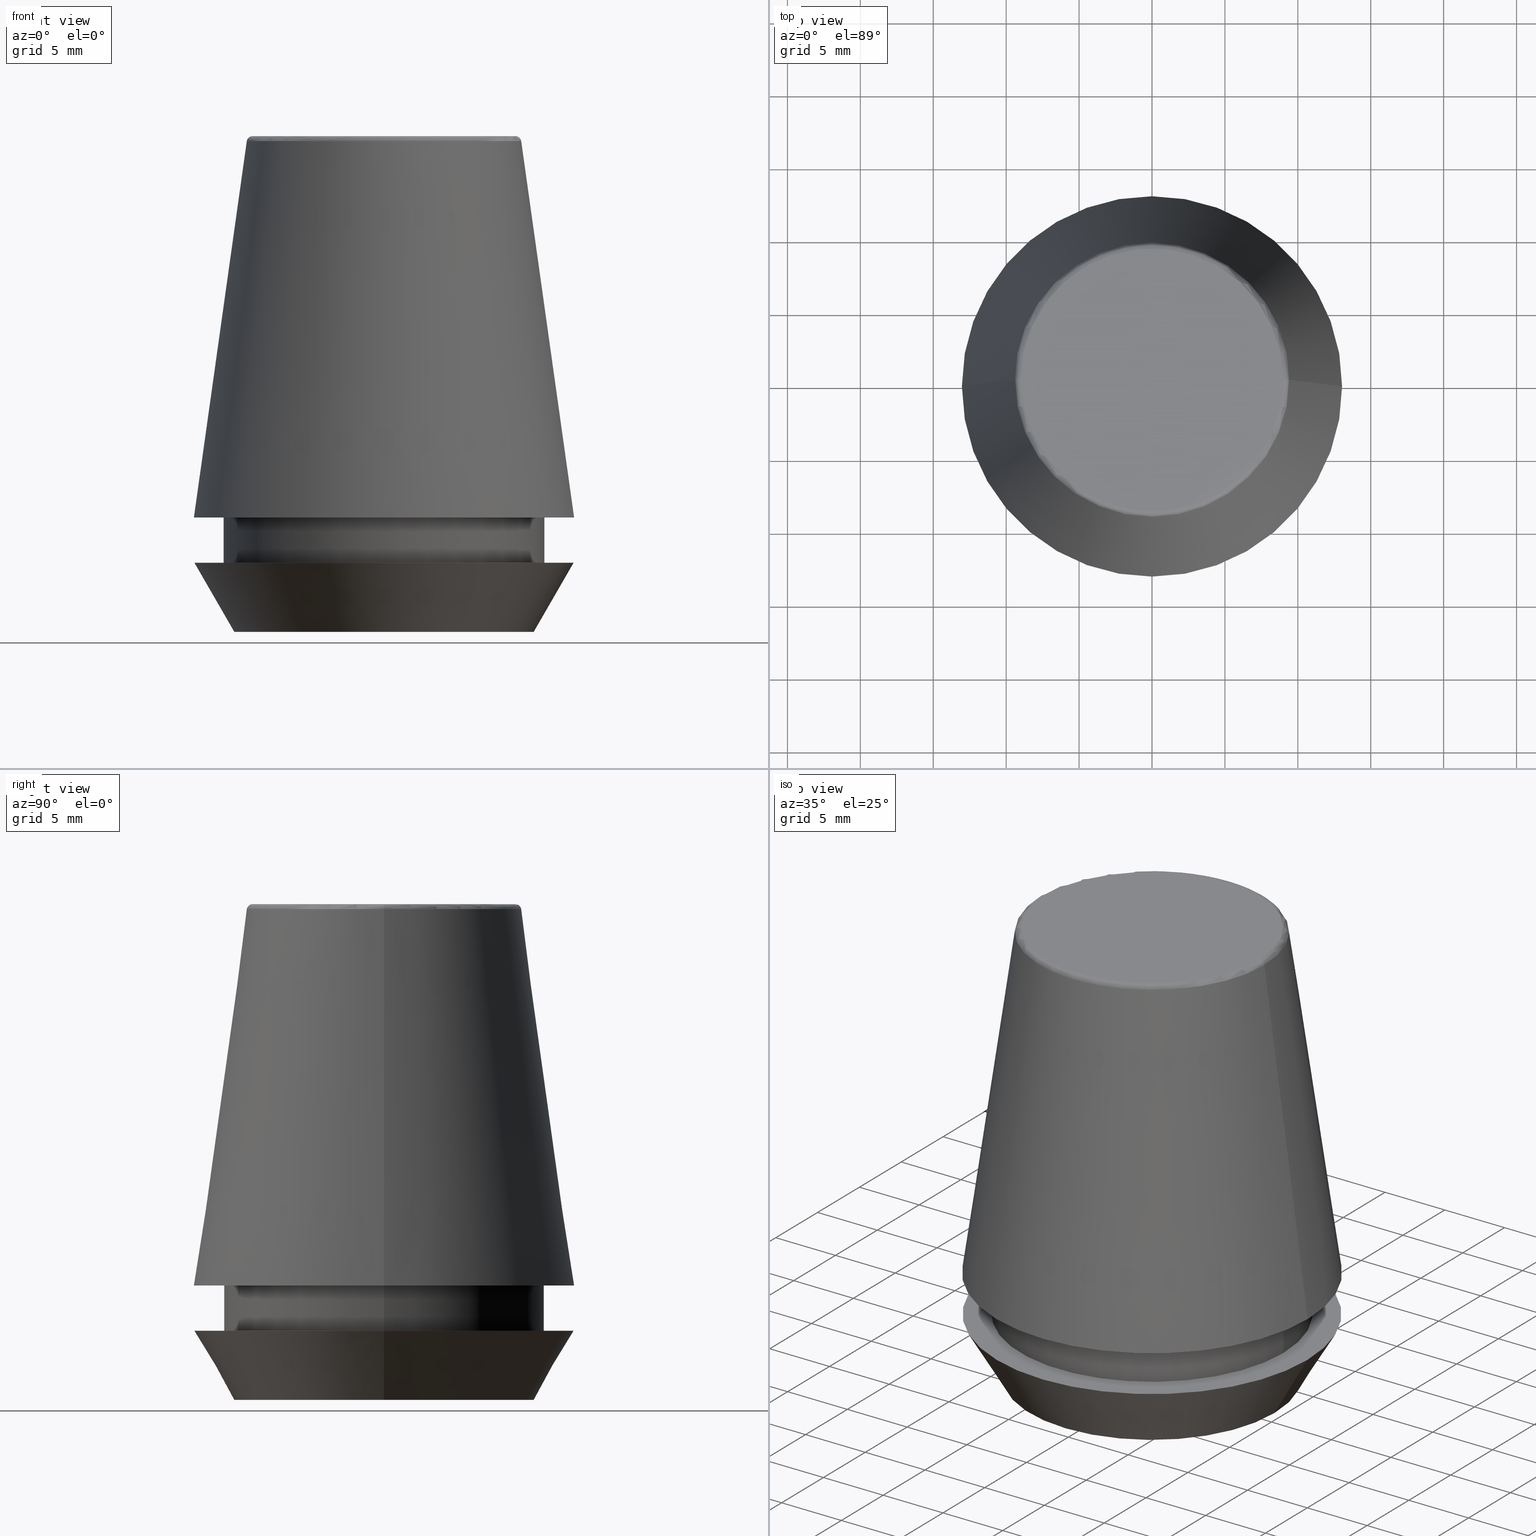
[diagram: canonical four-view strip — front | top / right | iso, engineering-drawing reading convention]
A machine part, canonical four-view strip (front | top / right | iso — engineering-drawing reading convention). The complete STEP part file that produces these views, byte-faithful:
ISO-10303-21;
HEADER;
FILE_DESCRIPTION (( 'STEP AP203' ),
    '1' );
FILE_NAME ('TAP COLLET ER 25G  8.0  X 6.3.STEP',
    '2019-04-09T10:04:27',
    ( '' ),
    ( '' ),
    'SwSTEP 2.0',
    'SolidWorks 2014',
    '' );
FILE_SCHEMA (( 'CONFIG_CONTROL_DESIGN' ));
ENDSEC;

DATA;
#1 = ADVANCED_BREP_SHAPE_REPRESENTATION ( 'TAP COLLET ER 25G  8.0  X 6.3', ( #89, #218 ), #176 ) ;
#2 = DIRECTION ( 'NONE',  ( 0.0000000000000000000, 0.0000000000000000000, -1.000000000000000000 ) ) ;
#3 = EDGE_CURVE ( 'NONE', #266, #68, #199, .T. ) ;
#4 = CARTESIAN_POINT ( 'NONE',  ( 10.26217568973925200, 0.0000000000000000000, 0.0000000000000000000 ) ) ;
#5 = DATE_AND_TIME ( #16, #63 ) ;
#6 = ORIENTED_EDGE ( 'NONE', *, *, #113, .F. ) ;
#7 = DIRECTION ( 'NONE',  ( 0.1391731009600587800, 1.704378926181474000E-017, -0.9902680687415712500 ) ) ;
#8 = CARTESIAN_POINT ( 'NONE',  ( 0.0000000000000000000, 0.0000000000000000000, 0.0000000000000000000 ) ) ;
#9 = ORIENTED_EDGE ( 'NONE', *, *, #150, .F. ) ;
#10 = CALENDAR_DATE ( 2019, 9, 4 ) ;
#11 = ORIENTED_EDGE ( 'NONE', *, *, #90, .F. ) ;
#12 = DIRECTION ( 'NONE',  ( 0.0000000000000000000, 0.0000000000000000000, -1.000000000000000000 ) ) ;
#13 = PRODUCT ( 'TAP COLLET ER 25G  8.0  X 6.3', 'TAP COLLET ER 25G  8.0  X 6.3', '', ( #167 ) ) ;
#14 = CONICAL_SURFACE ( 'NONE', #325, 13.03657776635556700, 0.1396263401595396500 ) ;
#15 = APPROVAL_ROLE ( '' ) ;
#16 = CALENDAR_DATE ( 2019, 9, 4 ) ;
#17 = FACE_OUTER_BOUND ( 'NONE', #290, .T. ) ;
#18 = CARTESIAN_POINT ( 'NONE',  ( 0.0000000000000000000, 0.0000000000000000000, 101.8074564848000400 ) ) ;
#19 = DIRECTION ( 'NONE',  ( -0.0000000000000000000, -0.0000000000000000000, 1.000000000000000000 ) ) ;
#20 = DIRECTION ( 'NONE',  ( 1.000000000000000000, 0.0000000000000000000, 0.0000000000000000000 ) ) ;
#21 = COORDINATED_UNIVERSAL_TIME_OFFSET ( 5, 30, .AHEAD. ) ;
#22 = ORIENTED_EDGE ( 'NONE', *, *, #87, .T. ) ;
#23 = PERSON_AND_ORGANIZATION ( #249, #98 ) ;
#24 = PLANE ( 'NONE',  #122 ) ;
#25 = FACE_OUTER_BOUND ( 'NONE', #142, .T. ) ;
#26 = PERSON_AND_ORGANIZATION ( #249, #98 ) ;
#27 = ORIENTED_EDGE ( 'NONE', *, *, #113, .T. ) ;
#28 = CARTESIAN_POINT ( 'NONE',  ( -13.03657776635556700, 0.0000000000000000000, 7.842050807568876200 ) ) ;
#29 = DESIGN_CONTEXT ( 'detailed design', #335, 'design' ) ;
#30 = DIRECTION ( 'NONE',  ( -1.000000000000000000, 0.0000000000000000000, -0.0000000000000000000 ) ) ;
#31 = DATE_AND_TIME ( #10, #91 ) ;
#32 = AXIS2_PLACEMENT_3D ( 'NONE', #297, #145, #331 ) ;
#33 = ORIENTED_EDGE ( 'NONE', *, *, #51, .F. ) ;
#34 = CARTESIAN_POINT ( 'NONE',  ( 0.0000000000000000000, 0.0000000000000000000, 33.60000000000000100 ) ) ;
#35 = FACE_OUTER_BOUND ( 'NONE', #304, .T. ) ;
#36 = ADVANCED_FACE ( 'NONE', ( #154 ), #330, .T. ) ;
#37 = DIRECTION ( 'NONE',  ( 1.000000000000000000, 0.0000000000000000000, 0.0000000000000000000 ) ) ;
#38 = DIRECTION ( 'NONE',  ( 1.000000000000000000, 0.0000000000000000000, 0.0000000000000000000 ) ) ;
#39 = PRODUCT_DEFINITION ( 'UNKNOWN', '', #186, #29 ) ;
#40 = ORIENTED_EDGE ( 'NONE', *, *, #230, .T. ) ;
#41 = DIRECTION ( 'NONE',  ( -0.0000000000000000000, -0.0000000000000000000, 1.000000000000000000 ) ) ;
#42 = CIRCLE ( 'NONE', #340, 13.03657776635556700 ) ;
#43 = EDGE_CURVE ( 'NONE', #243, #68, #299, .T. ) ;
#44 = DIRECTION ( 'NONE',  ( 1.000000000000000000, 0.0000000000000000000, 0.0000000000000000000 ) ) ;
#45 = DIRECTION ( 'NONE',  ( -0.1391731009600587800, 0.0000000000000000000, -0.9902680687415712500 ) ) ;
#46 = ADVANCED_FACE ( 'NONE', ( #125 ), #14, .T. ) ;
#47 =( NAMED_UNIT ( * ) SI_UNIT ( $, .STERADIAN. ) SOLID_ANGLE_UNIT ( ) );
#48 = FACE_OUTER_BOUND ( 'NONE', #337, .T. ) ;
#49 = EDGE_CURVE ( 'NONE', #144, #198, #42, .T. ) ;
#50 = CARTESIAN_POINT ( 'NONE',  ( 0.0000000000000000000, 0.0000000000000000000, 7.842050807568876200 ) ) ;
#51 = EDGE_CURVE ( 'NONE', #136, #69, #196, .T. ) ;
#52 = PERSON_AND_ORGANIZATION_ROLE ( 'creator' ) ;
#53 = EDGE_CURVE ( 'NONE', #81, #198, #58, .T. ) ;
#54 = CARTESIAN_POINT ( 'NONE',  ( 9.012603057622234500, 0.0000000000000000000, 33.60000000000000100 ) ) ;
#55 = ORIENTED_EDGE ( 'NONE', *, *, #180, .F. ) ;
#56 = DIRECTION ( 'NONE',  ( 1.000000000000000000, 0.0000000000000000000, 0.0000000000000000000 ) ) ;
#57 = ORIENTED_EDGE ( 'NONE', *, *, #64, .F. ) ;
#58 = LINE ( 'NONE', #387, #181 ) ;
#59 = APPROVAL_PERSON_ORGANIZATION ( #112, #315, #306 ) ;
#60 = DIRECTION ( 'NONE',  ( -0.0000000000000000000, -0.0000000000000000000, 1.000000000000000000 ) ) ;
#61 = DIRECTION ( 'NONE',  ( 0.0000000000000000000, -1.000000000000000000, 0.0000000000000000000 ) ) ;
#62 = CIRCLE ( 'NONE', #265, 13.03657776635556700 ) ;
#63 = LOCAL_TIME ( 15, 34, 27.00000000000000000, #21 ) ;
#64 = EDGE_CURVE ( 'NONE', #69, #136, #370, .T. ) ;
#65 = PRODUCT_DEFINITION_SHAPE ( 'NONE', 'NONE',  #39 ) ;
#66 = VERTEX_POINT ( 'NONE', #247 ) ;
#67 = CC_DESIGN_APPROVAL ( #250, ( #186 ) ) ;
#68 = VERTEX_POINT ( 'NONE', #282 ) ;
#69 = VERTEX_POINT ( 'NONE', #162 ) ;
#70 = APPROVAL_DATE_TIME ( #350, #351 ) ;
#71 = AXIS2_PLACEMENT_3D ( 'NONE', #160, #131, #255 ) ;
#72 = EDGE_CURVE ( 'NONE', #269, #66, #200, .T. ) ;
#73 = ORIENTED_EDGE ( 'NONE', *, *, #53, .F. ) ;
#74 = CIRCLE ( 'NONE', #373, 9.408710285118862900 ) ;
#75 = APPROVAL_PERSON_ORGANIZATION ( #317, #250, #248 ) ;
#76 = DIRECTION ( 'NONE',  ( -0.0000000000000000000, -0.0000000000000000000, 1.000000000000000000 ) ) ;
#77 = EDGE_LOOP ( 'NONE', ( #151, #187, #326, #6 ) ) ;
#78 = DIRECTION ( 'NONE',  ( 0.0000000000000000000, 0.0000000000000000000, -1.000000000000000000 ) ) ;
#79 = CIRCLE ( 'NONE', #334, 0.4000000000000010200 ) ;
#80 = CALENDAR_DATE ( 2019, 9, 4 ) ;
#81 = VERTEX_POINT ( 'NONE', #172 ) ;
#82 = DIRECTION ( 'NONE',  ( 1.000000000000000000, 0.0000000000000000000, 0.0000000000000000000 ) ) ;
#83 = APPLICATION_CONTEXT ( 'configuration controlled 3d designs of mechanical parts and assemblies' ) ;
#84 = CARTESIAN_POINT ( 'NONE',  ( 0.0000000000000000000, 0.0000000000000000000, 0.0000000000000000000 ) ) ;
#85 = EDGE_CURVE ( 'NONE', #185, #136, #348, .T. ) ;
#86 = PERSON_AND_ORGANIZATION_ROLE ( 'creator' ) ;
#87 = EDGE_CURVE ( 'NONE', #68, #266, #110, .T. ) ;
#88 = ADVANCED_FACE ( 'NONE', ( #25 ), #257, .T. ) ;
#89 = MANIFOLD_SOLID_BREP ( 'Revolve1', #303 ) ;
#90 = EDGE_CURVE ( 'NONE', #124, #185, #270, .T. ) ;
#91 = LOCAL_TIME ( 15, 34, 27.00000000000000000, #212 ) ;
#92 = COORDINATED_UNIVERSAL_TIME_OFFSET ( 5, 30, .AHEAD. ) ;
#93 = ORIENTED_EDGE ( 'NONE', *, *, #129, .F. ) ;
#94 = ADVANCED_FACE ( 'NONE', ( #105 ), #117, .T. ) ;
#95 = EDGE_CURVE ( 'NONE', #185, #124, #165, .T. ) ;
#96 = AXIS2_PLACEMENT_3D ( 'NONE', #385, #192, #195 ) ;
#97 = COORDINATED_UNIVERSAL_TIME_OFFSET ( 5, 30, .AHEAD. ) ;
#98 = ORGANIZATION ( 'UNSPECIFIED', 'UNSPECIFIED', '' ) ;
#99 = DIRECTION ( 'NONE',  ( -0.0000000000000000000, -0.0000000000000000000, 1.000000000000000000 ) ) ;
#100 = EDGE_LOOP ( 'NONE', ( #215, #133, #203, #279 ) ) ;
#101 = AXIS2_PLACEMENT_3D ( 'NONE', #241, #280, #190 ) ;
#102 = CC_DESIGN_APPROVAL ( #315, ( #353 ) ) ;
#103 = ORIENTED_EDGE ( 'NONE', *, *, #230, .F. ) ;
#104 = FACE_BOUND ( 'NONE', #205, .T. ) ;
#105 = FACE_OUTER_BOUND ( 'NONE', #220, .T. ) ;
#106 = DIRECTION ( 'NONE',  ( 1.000000000000000000, 0.0000000000000000000, 0.0000000000000000000 ) ) ;
#107 = DATE_AND_TIME ( #127, #284 ) ;
#108 = PLANE ( 'NONE',  #137 ) ;
#109 = DIRECTION ( 'NONE',  ( 1.000000000000000000, 0.0000000000000000000, 0.0000000000000000000 ) ) ;
#110 = CIRCLE ( 'NONE', #246, 11.00000000000000000 ) ;
#111 = CARTESIAN_POINT ( 'NONE',  ( 0.0000000000000000000, 0.0000000000000000000, 33.65566924038402900 ) ) ;
#112 = PERSON_AND_ORGANIZATION ( #249, #98 ) ;
#113 = EDGE_CURVE ( 'NONE', #132, #66, #233, .T. ) ;
#114 = DIRECTION ( 'NONE',  ( 0.0000000000000000000, 0.0000000000000000000, -1.000000000000000000 ) ) ;
#115 = DIRECTION ( 'NONE',  ( -0.0000000000000000000, -0.0000000000000000000, 1.000000000000000000 ) ) ;
#116 = ORIENTED_EDGE ( 'NONE', *, *, #90, .T. ) ;
#117 = TOROIDAL_SURFACE ( 'NONE', #283, 9.012603057622234500, 0.4000000000000009700 ) ;
#118 = DIRECTION ( 'NONE',  ( -0.0000000000000000000, -0.0000000000000000000, 1.000000000000000000 ) ) ;
#119 = DIRECTION ( 'NONE',  ( 1.000000000000000000, 0.0000000000000000000, 0.0000000000000000000 ) ) ;
#120 = CONICAL_SURFACE ( 'NONE', #319, 13.03657776635556700, 0.1396263401595396500 ) ;
#121 = SECURITY_CLASSIFICATION_LEVEL ( 'unclassified' ) ;
#122 = AXIS2_PLACEMENT_3D ( 'NONE', #354, #12, #213 ) ;
#123 = CC_DESIGN_PERSON_AND_ORGANIZATION_ASSIGNMENT ( #371, #338, ( #353 ) ) ;
#124 = VERTEX_POINT ( 'NONE', #287 ) ;
#125 = FACE_OUTER_BOUND ( 'NONE', #175, .T. ) ;
#126 = DATE_TIME_ROLE ( 'creation_date' ) ;
#127 = CALENDAR_DATE ( 2019, 9, 4 ) ;
#128 = ORIENTED_EDGE ( 'NONE', *, *, #95, .F. ) ;
#129 = EDGE_CURVE ( 'NONE', #269, #144, #344, .T. ) ;
#130 = DIRECTION ( 'NONE',  ( 0.0000000000000000000, -0.0000000000000000000, 1.000000000000000000 ) ) ;
#131 = DIRECTION ( 'NONE',  ( -0.0000000000000000000, -0.0000000000000000000, 1.000000000000000000 ) ) ;
#132 = VERTEX_POINT ( 'NONE', #244 ) ;
#133 = ORIENTED_EDGE ( 'NONE', *, *, #146, .T. ) ;
#134 = DIRECTION ( 'NONE',  ( 1.000000000000000000, 0.0000000000000000000, 0.0000000000000000000 ) ) ;
#135 = DIRECTION ( 'NONE',  ( 1.224646799147353200E-016, 1.000000000000000000, 0.0000000000000000000 ) ) ;
#136 = VERTEX_POINT ( 'NONE', #264 ) ;
#137 = AXIS2_PLACEMENT_3D ( 'NONE', #262, #130, #378 ) ;
#138 = EDGE_LOOP ( 'NONE', ( #93, #369, #379, #355 ) ) ;
#139 = VECTOR ( 'NONE', #99, 1000.000000000000000 ) ;
#140 = CIRCLE ( 'NONE', #32, 11.00000000000000000 ) ;
#141 = DIRECTION ( 'NONE',  ( 1.000000000000000000, 0.0000000000000000000, 0.0000000000000000000 ) ) ;
#142 = EDGE_LOOP ( 'NONE', ( #275, #232, #189, #260 ) ) ;
#143 = DIRECTION ( 'NONE',  ( -0.0000000000000000000, -0.0000000000000000000, 1.000000000000000000 ) ) ;
#144 = VERTEX_POINT ( 'NONE', #240 ) ;
#145 = DIRECTION ( 'NONE',  ( -0.0000000000000000000, -0.0000000000000000000, 1.000000000000000000 ) ) ;
#146 = EDGE_CURVE ( 'NONE', #243, #169, #321, .T. ) ;
#147 = CARTESIAN_POINT ( 'NONE',  ( 0.0000000000000000000, 0.0000000000000000000, 0.0000000000000000000 ) ) ;
#148 = PERSON_AND_ORGANIZATION_ROLE ( 'design_owner' ) ;
#149 = DIRECTION ( 'NONE',  ( 0.0000000000000000000, 0.0000000000000000000, -1.000000000000000000 ) ) ;
#150 = EDGE_CURVE ( 'NONE', #269, #81, #74, .T. ) ;
#151 = ORIENTED_EDGE ( 'NONE', *, *, #236, .F. ) ;
#152 = APPROVAL_PERSON_ORGANIZATION ( #23, #351, #15 ) ;
#153 = ADVANCED_FACE ( 'NONE', ( #327 ), #197, .T. ) ;
#154 = FACE_OUTER_BOUND ( 'NONE', #296, .T. ) ;
#155 = CARTESIAN_POINT ( 'NONE',  ( 0.0000000000000000000, 0.0000000000000000000, 7.842050807568876200 ) ) ;
#156 = SHAPE_DEFINITION_REPRESENTATION ( #65, #1 ) ;
#157 = CARTESIAN_POINT ( 'NONE',  ( 0.0000000000000000000, 9.012603057622234500, 34.00000000000000000 ) ) ;
#158 = PLANE ( 'NONE',  #332 ) ;
#159 = EDGE_CURVE ( 'NONE', #169, #266, #328, .T. ) ;
#160 = CARTESIAN_POINT ( 'NONE',  ( 0.0000000000000000000, 0.0000000000000000000, 4.742050807568884500 ) ) ;
#161 = CONICAL_SURFACE ( 'NONE', #382, 10.26217568973925200, 0.5235987755982940400 ) ;
#162 = CARTESIAN_POINT ( 'NONE',  ( 13.00000000000000000, 0.0000000000000000000, 4.742050807568884500 ) ) ;
#163 = ORIENTED_EDGE ( 'NONE', *, *, #180, .T. ) ;
#164 = ADVANCED_FACE ( 'NONE', ( #173, #235 ), #171, .F. ) ;
#165 = CIRCLE ( 'NONE', #320, 10.26217568973925200 ) ;
#166 = LINE ( 'NONE', #4, #305 ) ;
#167 = MECHANICAL_CONTEXT ( 'NONE', #83, 'mechanical' ) ;
#168 = CARTESIAN_POINT ( 'NONE',  ( 0.0000000000000000000, 0.0000000000000000000, 4.742050807568884500 ) ) ;
#169 = VERTEX_POINT ( 'NONE', #184 ) ;
#170 = DIRECTION ( 'NONE',  ( 1.000000000000000000, 0.0000000000000000000, 0.0000000000000000000 ) ) ;
#171 = PLANE ( 'NONE',  #356 ) ;
#172 = CARTESIAN_POINT ( 'NONE',  ( -9.408710285118862900, 0.0000000000000000000, 33.65566924038402900 ) ) ;
#173 = FACE_OUTER_BOUND ( 'NONE', #352, .T. ) ;
#174 = CARTESIAN_POINT ( 'NONE',  ( 0.0000000000000000000, 0.0000000000000000000, 33.65566924038402900 ) ) ;
#175 = EDGE_LOOP ( 'NONE', ( #9, #365, #206, #73 ) ) ;
#176 =( GEOMETRIC_REPRESENTATION_CONTEXT ( 3 ) GLOBAL_UNCERTAINTY_ASSIGNED_CONTEXT ( ( #271 ) ) GLOBAL_UNIT_ASSIGNED_CONTEXT ( ( #254, #216, #47 ) ) REPRESENTATION_CONTEXT ( 'NONE', 'WORKASPACE' ) );
#177 = VECTOR ( 'NONE', #278, 1000.000000000000200 ) ;
#178 = CIRCLE ( 'NONE', #362, 9.012603057622234500 ) ;
#179 = COORDINATED_UNIVERSAL_TIME_OFFSET ( 5, 30, .AHEAD. ) ;
#180 = EDGE_CURVE ( 'NONE', #66, #132, #178, .T. ) ;
#181 = VECTOR ( 'NONE', #45, 1000.000000000000000 ) ;
#182 = FACE_OUTER_BOUND ( 'NONE', #138, .T. ) ;
#183 = PRODUCT_RELATED_PRODUCT_CATEGORY ( 'detail', '', ( #13 ) ) ;
#184 = CARTESIAN_POINT ( 'NONE',  ( 11.00000000000000000, 0.0000000000000000000, 4.742050807568884500 ) ) ;
#185 = VERTEX_POINT ( 'NONE', #263 ) ;
#186 = PRODUCT_DEFINITION_FORMATION_WITH_SPECIFIED_SOURCE ( 'ANY', '', #13, .NOT_KNOWN. ) ;
#187 = ORIENTED_EDGE ( 'NONE', *, *, #237, .T. ) ;
#188 = CC_DESIGN_DATE_AND_TIME_ASSIGNMENT ( #5, #274, ( #353 ) ) ;
#189 = ORIENTED_EDGE ( 'NONE', *, *, #3, .F. ) ;
#190 = DIRECTION ( 'NONE',  ( 1.000000000000000000, 0.0000000000000000000, 0.0000000000000000000 ) ) ;
#191 = VECTOR ( 'NONE', #7, 1000.000000000000000 ) ;
#192 = DIRECTION ( 'NONE',  ( -0.0000000000000000000, -0.0000000000000000000, 1.000000000000000000 ) ) ;
#193 = APPROVAL_STATUS ( 'not_yet_approved' ) ;
#194 = DIRECTION ( 'NONE',  ( -1.000000000000000000, 0.0000000000000000000, 0.0000000000000000000 ) ) ;
#195 = DIRECTION ( 'NONE',  ( 1.000000000000000000, 0.0000000000000000000, 0.0000000000000000000 ) ) ;
#196 = CIRCLE ( 'NONE', #329, 13.00000000000000000 ) ;
#197 = TOROIDAL_SURFACE ( 'NONE', #364, 9.012603057622234500, 0.4000000000000009700 ) ;
#198 = VERTEX_POINT ( 'NONE', #28 ) ;
#199 = CIRCLE ( 'NONE', #101, 11.00000000000000000 ) ;
#200 = CIRCLE ( 'NONE', #285, 0.3999999999999975800 ) ;
#201 = DIRECTION ( 'NONE',  ( 1.000000000000000000, 0.0000000000000000000, 0.0000000000000000000 ) ) ;
#202 = LOCAL_TIME ( 15, 34, 27.00000000000000000, #179 ) ;
#203 = ORIENTED_EDGE ( 'NONE', *, *, #159, .T. ) ;
#204 = CC_DESIGN_SECURITY_CLASSIFICATION ( #353, ( #186 ) ) ;
#205 = EDGE_LOOP ( 'NONE', ( #347, #358 ) ) ;
#206 = ORIENTED_EDGE ( 'NONE', *, *, #49, .T. ) ;
#207 = CC_DESIGN_PERSON_AND_ORGANIZATION_ASSIGNMENT ( #26, #52, ( #39 ) ) ;
#208 = CC_DESIGN_PERSON_AND_ORGANIZATION_ASSIGNMENT ( #333, #86, ( #186 ) ) ;
#209 = CARTESIAN_POINT ( 'NONE',  ( 0.0000000000000000000, 13.03657776635556700, 7.842050807568883300 ) ) ;
#210 = CARTESIAN_POINT ( 'NONE',  ( -10.26217568973925200, 1.256754061072695800E-015, 0.0000000000000000000 ) ) ;
#211 = ORIENTED_EDGE ( 'NONE', *, *, #95, .T. ) ;
#212 = COORDINATED_UNIVERSAL_TIME_OFFSET ( 5, 30, .AHEAD. ) ;
#213 = DIRECTION ( 'NONE',  ( -1.000000000000000000, 0.0000000000000000000, -0.0000000000000000000 ) ) ;
#214 = LOCAL_TIME ( 15, 34, 27.00000000000000000, #92 ) ;
#215 = ORIENTED_EDGE ( 'NONE', *, *, #43, .F. ) ;
#216 =( NAMED_UNIT ( * ) PLANE_ANGLE_UNIT ( ) SI_UNIT ( $, .RADIAN. ) );
#217 = PERSON_AND_ORGANIZATION_ROLE ( 'design_supplier' ) ;
#218 = AXIS2_PLACEMENT_3D ( 'NONE', #147, #372, #119 ) ;
#219 = DIRECTION ( 'NONE',  ( 1.000000000000000000, 0.0000000000000000000, 0.0000000000000000000 ) ) ;
#220 = EDGE_LOOP ( 'NONE', ( #286, #375, #55, #221 ) ) ;
#221 = ORIENTED_EDGE ( 'NONE', *, *, #72, .F. ) ;
#222 = CARTESIAN_POINT ( 'NONE',  ( 0.0000000000000000000, 0.0000000000000000000, 33.60000000000000100 ) ) ;
#223 = ADVANCED_FACE ( 'NONE', ( #17 ), #158, .F. ) ;
#224 = PERSON_AND_ORGANIZATION ( #249, #98 ) ;
#225 = CC_DESIGN_PERSON_AND_ORGANIZATION_ASSIGNMENT ( #323, #148, ( #13 ) ) ;
#226 = DIRECTION ( 'NONE',  ( 1.000000000000000000, 0.0000000000000000000, 0.0000000000000000000 ) ) ;
#227 = CC_DESIGN_DATE_AND_TIME_ASSIGNMENT ( #258, #126, ( #39 ) ) ;
#228 = CARTESIAN_POINT ( 'NONE',  ( 9.408710285118862900, 1.374377508408924700E-015, 33.65566924038402900 ) ) ;
#229 = ORIENTED_EDGE ( 'NONE', *, *, #85, .F. ) ;
#230 = EDGE_CURVE ( 'NONE', #124, #69, #166, .T. ) ;
#231 = ORIENTED_EDGE ( 'NONE', *, *, #85, .T. ) ;
#232 = ORIENTED_EDGE ( 'NONE', *, *, #43, .T. ) ;
#233 = CIRCLE ( 'NONE', #377, 9.012603057622234500 ) ;
#234 = DIRECTION ( 'NONE',  ( -1.000000000000000000, 1.224646799147353200E-016, 0.0000000000000000000 ) ) ;
#235 = FACE_BOUND ( 'NONE', #342, .T. ) ;
#236 = EDGE_CURVE ( 'NONE', #81, #132, #79, .T. ) ;
#237 = EDGE_CURVE ( 'NONE', #81, #269, #300, .T. ) ;
#238 = CYLINDRICAL_SURFACE ( 'NONE', #314, 11.00000000000000000 ) ;
#239 = ADVANCED_FACE ( 'NONE', ( #293 ), #108, .F. ) ;
#240 = CARTESIAN_POINT ( 'NONE',  ( 13.03657776635556700, 1.596520323340289600E-015, 7.842050807568876200 ) ) ;
#241 = CARTESIAN_POINT ( 'NONE',  ( 0.0000000000000000000, 0.0000000000000000000, 7.842050807568890400 ) ) ;
#242 = EDGE_CURVE ( 'NONE', #198, #144, #62, .T. ) ;
#243 = VERTEX_POINT ( 'NONE', #343 ) ;
#244 = CARTESIAN_POINT ( 'NONE',  ( -9.012603057622234500, 1.127980121063915600E-015, 34.00000000000000000 ) ) ;
#245 = CARTESIAN_POINT ( 'NONE',  ( 0.0000000000000000000, 0.0000000000000000000, 0.0000000000000000000 ) ) ;
#246 = AXIS2_PLACEMENT_3D ( 'NONE', #341, #376, #219 ) ;
#247 = CARTESIAN_POINT ( 'NONE',  ( 9.012603057622234500, 0.0000000000000000000, 34.00000000000000000 ) ) ;
#248 = APPROVAL_ROLE ( '' ) ;
#249 = PERSON ( 'UNSPECIFIED', 'UNSPECIFIED', 'UNSPECIFIED', ('UNSPECIFIED'), ('UNSPECIFIED'), ('UNSPECIFIED') ) ;
#250 = APPROVAL ( #272, 'UNSPECIFIED' ) ;
#251 = ADVANCED_FACE ( 'NONE', ( #182 ), #120, .T. ) ;
#252 = CARTESIAN_POINT ( 'NONE',  ( 0.0000000000000000000, 0.0000000000000000000, 4.742050807568884500 ) ) ;
#253 = DIRECTION ( 'NONE',  ( 1.000000000000000000, 0.0000000000000000000, 0.0000000000000000000 ) ) ;
#254 =( LENGTH_UNIT ( ) NAMED_UNIT ( * ) SI_UNIT ( .MILLI., .METRE. ) );
#255 = DIRECTION ( 'NONE',  ( 1.000000000000000000, 0.0000000000000000000, 0.0000000000000000000 ) ) ;
#256 = ORIENTED_EDGE ( 'NONE', *, *, #51, .T. ) ;
#257 = CYLINDRICAL_SURFACE ( 'NONE', #309, 11.00000000000000000 ) ;
#258 = DATE_AND_TIME ( #80, #202 ) ;
#259 = EDGE_LOOP ( 'NONE', ( #11, #128 ) ) ;
#260 = ORIENTED_EDGE ( 'NONE', *, *, #159, .F. ) ;
#261 = DIRECTION ( 'NONE',  ( 0.4999999999999957800, 0.0000000000000000000, 0.8660254037844410400 ) ) ;
#262 = CARTESIAN_POINT ( 'NONE',  ( 0.0000000000000000000, 0.0000000000000000000, 0.0000000000000000000 ) ) ;
#263 = CARTESIAN_POINT ( 'NONE',  ( -10.26217568973925200, 1.424397449982127500E-015, 0.0000000000000000000 ) ) ;
#264 = CARTESIAN_POINT ( 'NONE',  ( -13.00000000000000000, 1.592040838891559100E-015, 4.742050807568884500 ) ) ;
#265 = AXIS2_PLACEMENT_3D ( 'NONE', #155, #60, #253 ) ;
#266 = VERTEX_POINT ( 'NONE', #308 ) ;
#267 = DIRECTION ( 'NONE',  ( -0.0000000000000000000, -0.0000000000000000000, 1.000000000000000000 ) ) ;
#268 = ORIENTED_EDGE ( 'NONE', *, *, #49, .F. ) ;
#269 = VERTEX_POINT ( 'NONE', #228 ) ;
#270 = CIRCLE ( 'NONE', #273, 10.26217568973925200 ) ;
#271 = UNCERTAINTY_MEASURE_WITH_UNIT (LENGTH_MEASURE( 1.000000000000000100E-005 ), #254, 'distance_accuracy_value', 'NONE');
#272 = APPROVAL_STATUS ( 'not_yet_approved' ) ;
#273 = AXIS2_PLACEMENT_3D ( 'NONE', #84, #41, #56 ) ;
#274 = DATE_TIME_ROLE ( 'classification_date' ) ;
#275 = ORIENTED_EDGE ( 'NONE', *, *, #357, .T. ) ;
#276 = DIRECTION ( 'NONE',  ( -0.0000000000000000000, -0.0000000000000000000, 1.000000000000000000 ) ) ;
#277 = CARTESIAN_POINT ( 'NONE',  ( 0.0000000000000000000, 0.0000000000000000000, 7.842050807568876200 ) ) ;
#278 = DIRECTION ( 'NONE',  ( -0.4999999999999957800, 6.123233995736714300E-017, 0.8660254037844410400 ) ) ;
#279 = ORIENTED_EDGE ( 'NONE', *, *, #87, .F. ) ;
#280 = DIRECTION ( 'NONE',  ( -0.0000000000000000000, -0.0000000000000000000, 1.000000000000000000 ) ) ;
#281 = APPROVAL_DATE_TIME ( #31, #250 ) ;
#282 = CARTESIAN_POINT ( 'NONE',  ( -11.00000000000000000, 1.347111479062088400E-015, 7.842050807568890400 ) ) ;
#283 = AXIS2_PLACEMENT_3D ( 'NONE', #222, #19, #134 ) ;
#284 = LOCAL_TIME ( 15, 34, 27.00000000000000000, #97 ) ;
#285 = AXIS2_PLACEMENT_3D ( 'NONE', #54, #61, #149 ) ;
#286 = ORIENTED_EDGE ( 'NONE', *, *, #150, .T. ) ;
#287 = CARTESIAN_POINT ( 'NONE',  ( 10.26217568973925200, 0.0000000000000000000, 0.0000000000000000000 ) ) ;
#288 = CARTESIAN_POINT ( 'NONE',  ( -9.012603057622234500, 1.103725548650271700E-015, 33.60000000000000100 ) ) ;
#289 = DIRECTION ( 'NONE',  ( 0.0000000000000000000, -0.0000000000000000000, 1.000000000000000000 ) ) ;
#290 = EDGE_LOOP ( 'NONE', ( #163, #27 ) ) ;
#291 = CARTESIAN_POINT ( 'NONE',  ( 0.0000000000000000000, 0.0000000000000000000, 34.00000000000000000 ) ) ;
#292 = CARTESIAN_POINT ( 'NONE',  ( 11.00000000000000000, 0.0000000000000000000, 101.8074564848000400 ) ) ;
#293 = FACE_OUTER_BOUND ( 'NONE', #259, .T. ) ;
#294 = CARTESIAN_POINT ( 'NONE',  ( 0.0000000000000000000, 0.0000000000000000000, 7.842050807568876200 ) ) ;
#295 = VECTOR ( 'NONE', #380, 1000.000000000000000 ) ;
#296 = EDGE_LOOP ( 'NONE', ( #116, #231, #57, #103 ) ) ;
#297 = CARTESIAN_POINT ( 'NONE',  ( 0.0000000000000000000, 0.0000000000000000000, 4.742050807568884500 ) ) ;
#298 = APPLICATION_PROTOCOL_DEFINITION ( 'international standard', 'config_control_design', 1994, #83 ) ;
#299 = LINE ( 'NONE', #316, #139 ) ;
#300 = CIRCLE ( 'NONE', #312, 9.408710285118862900 ) ;
#301 = ADVANCED_FACE ( 'NONE', ( #381 ), #238, .T. ) ;
#302 = DIRECTION ( 'NONE',  ( 1.000000000000000000, 0.0000000000000000000, 0.0000000000000000000 ) ) ;
#303 = CLOSED_SHELL ( 'NONE', ( #94, #46, #88, #36, #239, #368, #311, #301, #164, #251, #153, #223 ) ) ;
#304 = EDGE_LOOP ( 'NONE', ( #229, #211, #40, #33 ) ) ;
#305 = VECTOR ( 'NONE', #261, 1000.000000000000200 ) ;
#306 = APPROVAL_ROLE ( '' ) ;
#307 = APPROVAL_DATE_TIME ( #107, #315 ) ;
#308 = CARTESIAN_POINT ( 'NONE',  ( 11.00000000000000000, 0.0000000000000000000, 7.842050807568890400 ) ) ;
#309 = AXIS2_PLACEMENT_3D ( 'NONE', #18, #276, #170 ) ;
#310 = DIRECTION ( 'NONE',  ( -0.0000000000000000000, -0.0000000000000000000, 1.000000000000000000 ) ) ;
#311 = ADVANCED_FACE ( 'NONE', ( #104, #48 ), #24, .F. ) ;
#312 = AXIS2_PLACEMENT_3D ( 'NONE', #174, #310, #201 ) ;
#313 = DIRECTION ( 'NONE',  ( -0.0000000000000000000, -0.0000000000000000000, 1.000000000000000000 ) ) ;
#314 = AXIS2_PLACEMENT_3D ( 'NONE', #346, #349, #226 ) ;
#315 = APPROVAL ( #339, 'UNSPECIFIED' ) ;
#316 = CARTESIAN_POINT ( 'NONE',  ( -11.00000000000000000, 1.347111479062088400E-015, 101.8074564848000400 ) ) ;
#317 = PERSON_AND_ORGANIZATION ( #249, #98 ) ;
#318 = CARTESIAN_POINT ( 'NONE',  ( 13.03657776635556700, 1.596520323340289600E-015, 7.842050807568876200 ) ) ;
#319 = AXIS2_PLACEMENT_3D ( 'NONE', #294, #114, #194 ) ;
#320 = AXIS2_PLACEMENT_3D ( 'NONE', #8, #76, #109 ) ;
#321 = CIRCLE ( 'NONE', #71, 11.00000000000000000 ) ;
#322 = DIRECTION ( 'NONE',  ( 1.000000000000000000, 0.0000000000000000000, 0.0000000000000000000 ) ) ;
#323 = PERSON_AND_ORGANIZATION ( #249, #98 ) ;
#324 = DIRECTION ( 'NONE',  ( -0.0000000000000000000, -0.0000000000000000000, 1.000000000000000000 ) ) ;
#325 = AXIS2_PLACEMENT_3D ( 'NONE', #277, #78, #336 ) ;
#326 = ORIENTED_EDGE ( 'NONE', *, *, #72, .T. ) ;
#327 = FACE_OUTER_BOUND ( 'NONE', #77, .T. ) ;
#328 = LINE ( 'NONE', #292, #295 ) ;
#329 = AXIS2_PLACEMENT_3D ( 'NONE', #168, #324, #20 ) ;
#330 = CONICAL_SURFACE ( 'NONE', #96, 10.26217568973925200, 0.5235987755982940400 ) ;
#331 = DIRECTION ( 'NONE',  ( 1.000000000000000000, 0.0000000000000000000, 0.0000000000000000000 ) ) ;
#332 = AXIS2_PLACEMENT_3D ( 'NONE', #157, #2, #30 ) ;
#333 = PERSON_AND_ORGANIZATION ( #249, #98 ) ;
#334 = AXIS2_PLACEMENT_3D ( 'NONE', #288, #135, #234 ) ;
#335 = APPLICATION_CONTEXT ( 'configuration controlled 3d designs of mechanical parts and assemblies' ) ;
#336 = DIRECTION ( 'NONE',  ( -1.000000000000000000, 0.0000000000000000000, 0.0000000000000000000 ) ) ;
#337 = EDGE_LOOP ( 'NONE', ( #361, #256 ) ) ;
#338 = PERSON_AND_ORGANIZATION_ROLE ( 'classification_officer' ) ;
#339 = APPROVAL_STATUS ( 'not_yet_approved' ) ;
#340 = AXIS2_PLACEMENT_3D ( 'NONE', #50, #118, #82 ) ;
#341 = CARTESIAN_POINT ( 'NONE',  ( 0.0000000000000000000, 0.0000000000000000000, 7.842050807568890400 ) ) ;
#342 = EDGE_LOOP ( 'NONE', ( #367, #22 ) ) ;
#343 = CARTESIAN_POINT ( 'NONE',  ( -11.00000000000000000, 1.347111479062088400E-015, 4.742050807568884500 ) ) ;
#344 = LINE ( 'NONE', #318, #191 ) ;
#345 = AXIS2_PLACEMENT_3D ( 'NONE', #252, #313, #302 ) ;
#346 = CARTESIAN_POINT ( 'NONE',  ( 0.0000000000000000000, 0.0000000000000000000, 101.8074564848000400 ) ) ;
#347 = ORIENTED_EDGE ( 'NONE', *, *, #357, .F. ) ;
#348 = LINE ( 'NONE', #210, #177 ) ;
#349 = DIRECTION ( 'NONE',  ( -0.0000000000000000000, -0.0000000000000000000, 1.000000000000000000 ) ) ;
#350 = DATE_AND_TIME ( #383, #214 ) ;
#351 = APPROVAL ( #193, 'UNSPECIFIED' ) ;
#352 = EDGE_LOOP ( 'NONE', ( #384, #268 ) ) ;
#353 = SECURITY_CLASSIFICATION ( '', '', #121 ) ;
#354 = CARTESIAN_POINT ( 'NONE',  ( 0.0000000000000000000, 13.00000000000000000, 4.742050807568884500 ) ) ;
#355 = ORIENTED_EDGE ( 'NONE', *, *, #242, .T. ) ;
#356 = AXIS2_PLACEMENT_3D ( 'NONE', #209, #289, #322 ) ;
#357 = EDGE_CURVE ( 'NONE', #169, #243, #140, .T. ) ;
#358 = ORIENTED_EDGE ( 'NONE', *, *, #146, .F. ) ;
#359 = CC_DESIGN_PERSON_AND_ORGANIZATION_ASSIGNMENT ( #224, #217, ( #186 ) ) ;
#360 = CARTESIAN_POINT ( 'NONE',  ( 0.0000000000000000000, 0.0000000000000000000, 34.00000000000000000 ) ) ;
#361 = ORIENTED_EDGE ( 'NONE', *, *, #64, .T. ) ;
#362 = AXIS2_PLACEMENT_3D ( 'NONE', #360, #363, #106 ) ;
#363 = DIRECTION ( 'NONE',  ( -0.0000000000000000000, -0.0000000000000000000, 1.000000000000000000 ) ) ;
#364 = AXIS2_PLACEMENT_3D ( 'NONE', #34, #366, #37 ) ;
#365 = ORIENTED_EDGE ( 'NONE', *, *, #129, .T. ) ;
#366 = DIRECTION ( 'NONE',  ( -0.0000000000000000000, -0.0000000000000000000, 1.000000000000000000 ) ) ;
#367 = ORIENTED_EDGE ( 'NONE', *, *, #3, .T. ) ;
#368 = ADVANCED_FACE ( 'NONE', ( #35 ), #161, .T. ) ;
#369 = ORIENTED_EDGE ( 'NONE', *, *, #237, .F. ) ;
#370 = CIRCLE ( 'NONE', #345, 13.00000000000000000 ) ;
#371 = PERSON_AND_ORGANIZATION ( #249, #98 ) ;
#372 = DIRECTION ( 'NONE',  ( 0.0000000000000000000, 0.0000000000000000000, 1.000000000000000000 ) ) ;
#373 = AXIS2_PLACEMENT_3D ( 'NONE', #111, #143, #38 ) ;
#374 = APPLICATION_PROTOCOL_DEFINITION ( 'international standard', 'config_control_design', 1994, #335 ) ;
#375 = ORIENTED_EDGE ( 'NONE', *, *, #236, .T. ) ;
#376 = DIRECTION ( 'NONE',  ( -0.0000000000000000000, -0.0000000000000000000, 1.000000000000000000 ) ) ;
#377 = AXIS2_PLACEMENT_3D ( 'NONE', #291, #267, #141 ) ;
#378 = DIRECTION ( 'NONE',  ( 1.000000000000000000, 0.0000000000000000000, 0.0000000000000000000 ) ) ;
#379 = ORIENTED_EDGE ( 'NONE', *, *, #53, .T. ) ;
#380 = DIRECTION ( 'NONE',  ( -0.0000000000000000000, -0.0000000000000000000, 1.000000000000000000 ) ) ;
#381 = FACE_OUTER_BOUND ( 'NONE', #100, .T. ) ;
#382 = AXIS2_PLACEMENT_3D ( 'NONE', #245, #115, #44 ) ;
#383 = CALENDAR_DATE ( 2019, 9, 4 ) ;
#384 = ORIENTED_EDGE ( 'NONE', *, *, #242, .F. ) ;
#385 = CARTESIAN_POINT ( 'NONE',  ( 0.0000000000000000000, 0.0000000000000000000, 0.0000000000000000000 ) ) ;
#386 = CC_DESIGN_APPROVAL ( #351, ( #39 ) ) ;
#387 = CARTESIAN_POINT ( 'NONE',  ( -13.03657776635556700, 0.0000000000000000000, 7.842050807568876200 ) ) ;
ENDSEC;
END-ISO-10303-21;
